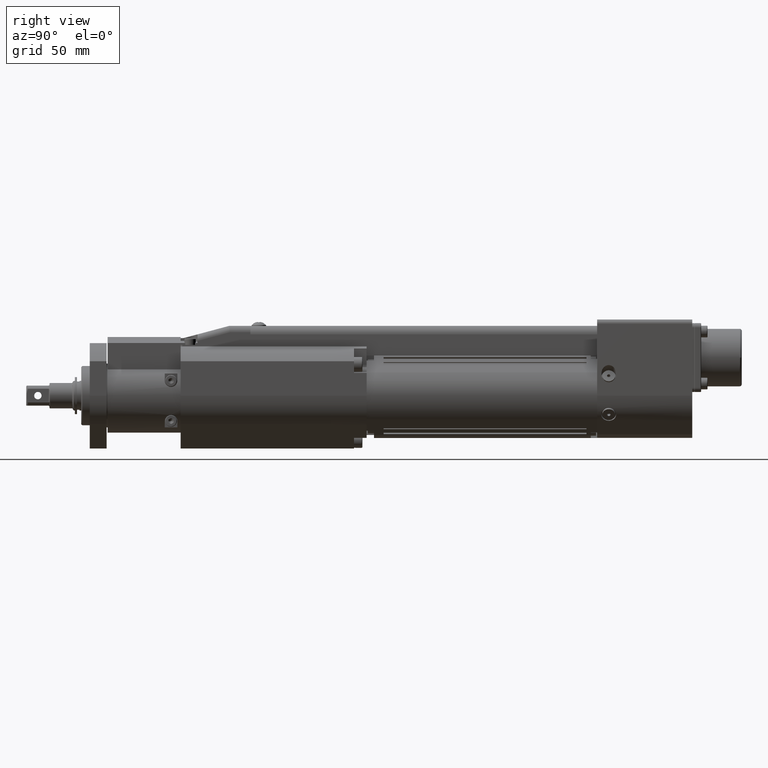
[diagram: clean part render]
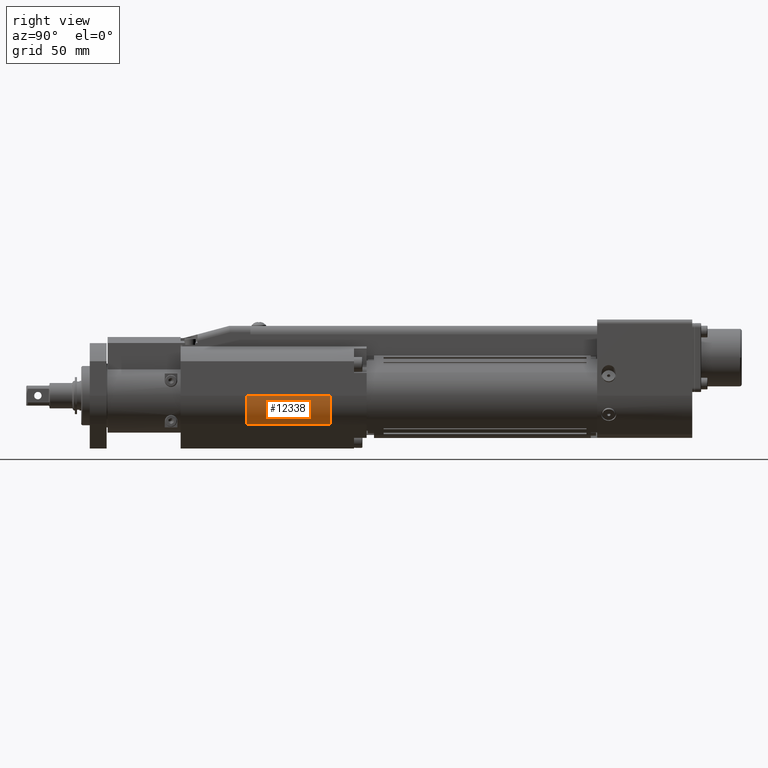
[diagram: same view with one face highlighted and labeled with its STEP entity id]
A machine part, right view. The second image highlights one B-rep face of the part: STEP entity #12338.
In plain terms, the highlighted cylindrical surface (partial cylindrical patch) has radius 19 mm, axis along (0, 1, -0).
Its self-contained STEP definition (entity closure, byte-faithful):
#298=CYLINDRICAL_SURFACE('',#13271,19.);
#732=FACE_OUTER_BOUND('',#1461,.T.);
#1461=EDGE_LOOP('',(#8600,#8601,#8602,#8603));
#2245=CIRCLE('',#13272,19.);
#2246=CIRCLE('',#13273,19.);
#2935=LINE('',#19845,#3991);
#2936=LINE('',#19848,#3992);
#3991=VECTOR('',#15289,10.);
#3992=VECTOR('',#15292,10.);
#5159=VERTEX_POINT('',#19834);
#5162=VERTEX_POINT('',#19842);
#5163=VERTEX_POINT('',#19843);
#5164=VERTEX_POINT('',#19846);
#6458=EDGE_CURVE('',#5162,#5163,#2245,.T.);
#6459=EDGE_CURVE('',#5163,#5159,#2935,.T.);
#6460=EDGE_CURVE('',#5164,#5159,#2246,.T.);
#6461=EDGE_CURVE('',#5162,#5164,#2936,.T.);
#8600=ORIENTED_EDGE('',*,*,#6458,.T.);
#8601=ORIENTED_EDGE('',*,*,#6459,.T.);
#8602=ORIENTED_EDGE('',*,*,#6460,.F.);
#8603=ORIENTED_EDGE('',*,*,#6461,.F.);
#12338=ADVANCED_FACE('',(#732),#298,.T.);
#13271=AXIS2_PLACEMENT_3D('',#19841,#15285,#15286);
#13272=AXIS2_PLACEMENT_3D('',#19844,#15287,#15288);
#13273=AXIS2_PLACEMENT_3D('',#19847,#15290,#15291);
#15285=DIRECTION('center_axis',(7.21644966006352E-16,1.,-2.84049013948921E-16));
#15286=DIRECTION('ref_axis',(1.,-7.21644966006352E-16,2.22044604925031E-16));
#15287=DIRECTION('center_axis',(7.21644966006352E-16,1.,-2.84049013948921E-16));
#15288=DIRECTION('ref_axis',(1.,-7.21644966006352E-16,2.22044604925031E-16));
#15289=DIRECTION('',(7.21644966006352E-16,1.,-2.84049013948921E-16));
#15290=DIRECTION('center_axis',(7.21644966006352E-16,1.,-2.84049013948921E-16));
#15291=DIRECTION('ref_axis',(1.,-7.21644966006352E-16,2.22044604925031E-16));
#15292=DIRECTION('',(7.21644966006352E-16,1.,-2.84049013948921E-16));
#19834=CARTESIAN_POINT('',(13.4350288425444,40.,-13.4350288425444));
#19841=CARTESIAN_POINT('Origin',(0.,0.,0.));
#19842=CARTESIAN_POINT('',(19.,-1.37112543541207E-14,4.2188474935756E-15));
#19843=CARTESIAN_POINT('',(13.4350288425444,-1.35115276274724E-14,-13.4350288425444));
#19844=CARTESIAN_POINT('Origin',(0.,0.,0.));
#19845=CARTESIAN_POINT('',(13.4350288425444,-1.35115276274724E-14,-13.4350288425444));
#19846=CARTESIAN_POINT('',(19.,40.,-7.14311306438126E-15));
#19847=CARTESIAN_POINT('Origin',(2.88657986402541E-14,40.,-1.13619605579569E-14));
#19848=CARTESIAN_POINT('',(19.,-1.37112543541207E-14,4.2188474935756E-15));